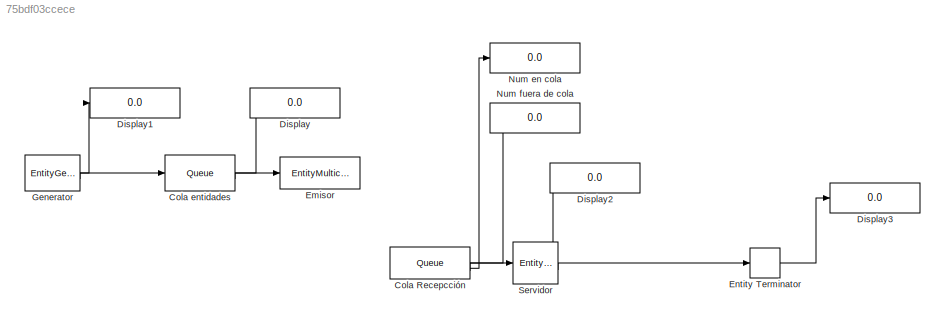
MODEL slx_75bdf03ccece
KIND model
CONFIG AbsTol = auto
CONFIG EnableMultiTasking = off
CONFIG FixedStep = auto
CONFIG MaxStep = auto
CONFIG MinStep = auto
CONFIG RelTol = 1e-3
CONFIG SampleTimeConstraint = Unconstrained
CONFIG SolverName = VariableStepAuto
CONFIG StartTime = 0.0
CONFIG StopTime = 10.0
BLOCK [Queue] Cola Recepcción
  EntityArrivalSource = Multicast
  NumberEntitiesDeparted = on
  NumberEntitiesInBlock = on
  OutputPortMap = o0,o1,o5
  OutputPortMessageModes = n,n,m
BLOCK [Queue] Cola entidades
  InputPortMap = u0
  InputPortMessageModes = m
  NumberEntitiesDeparted = on
  OutputPortMap = o0,o5
  OutputPortMessageModes = n,m
BLOCK [Display] Display
  Decimation = 1
BLOCK [Display] Display1
  Decimation = 1
BLOCK [Display] Display2
  Decimation = 1
BLOCK [Display] Display3
  Decimation = 1
BLOCK [EntityMulticast] Emisor
  InputPortMessageModes = m
  Tag = A
BLOCK [EntityTerminator] Entity Terminator
  InputPortMap = u0
  InputPortMessageModes = m
  NumberEntitiesArrived = on
  OutputPortMap = o0
BLOCK [EntityGenerator] Generator
  EntityType = Structured
  EntityTypeName = Entity
  NumberEntitiesDeparted = on
  OutputPortMap = o0,o3
  OutputPortMessageModes = n,m
  TimeSource = MATLAB action
BLOCK [Display] Num en cola
  Decimation = 1
BLOCK [Display] Num fuera de cola
  Decimation = 1
BLOCK [EntityServer] Servidor
  Capacity = 10
  InputPortMap = u2
  InputPortMessageModes = m
  NumberEntitiesInBlock = on
  OutputPortMap = o1,o9
  OutputPortMessageModes = n,m
  ServiceTimeValue = 2
LINE Cola Recepcción:1 -> Num fuera de cola:1
LINE Cola Recepcción:2 -> Num en cola:1
LINE Cola Recepcción:3 -> Servidor:1
LINE Cola entidades:1 -> Display:1
LINE Cola entidades:2 -> Emisor:1
LINE Entity Terminator:1 -> Display3:1
LINE Generator:1 -> Display1:1
LINE Generator:2 -> Cola entidades:1
LINE Servidor:1 -> Display2:1
LINE Servidor:2 -> Entity Terminator:1
